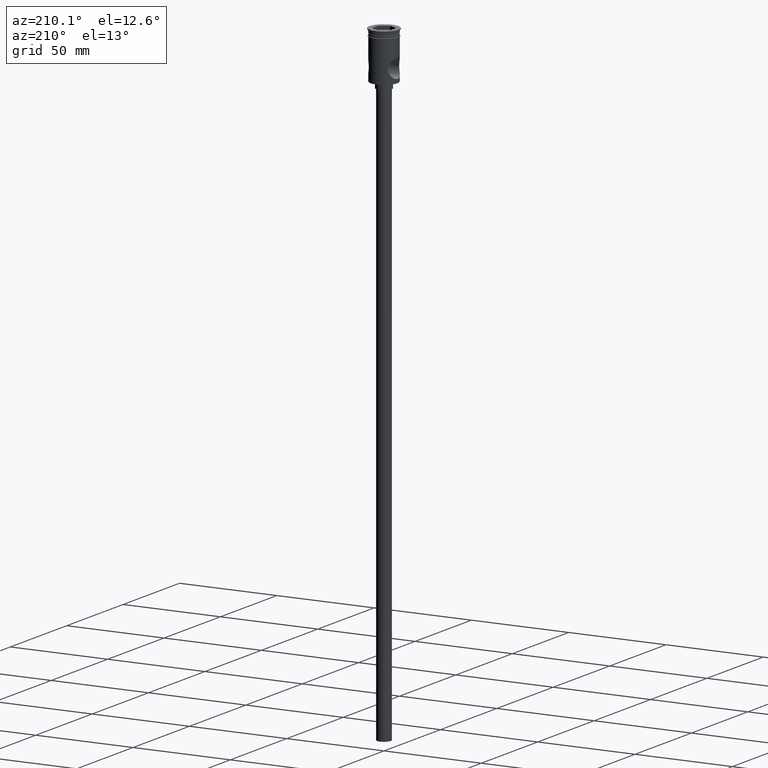
[diagram: clean part render]
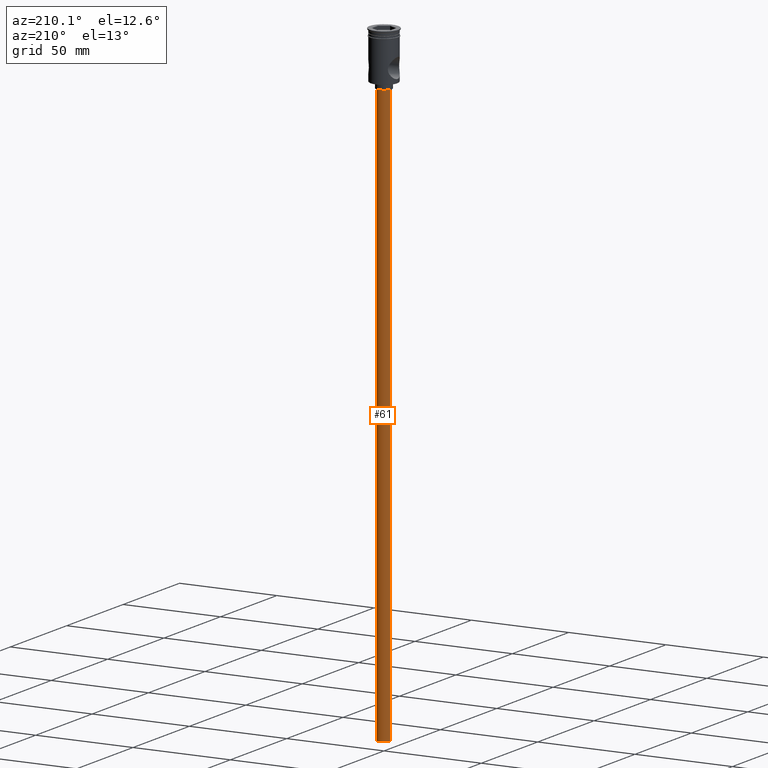
[diagram: same view with one face highlighted and labeled with its STEP entity id]
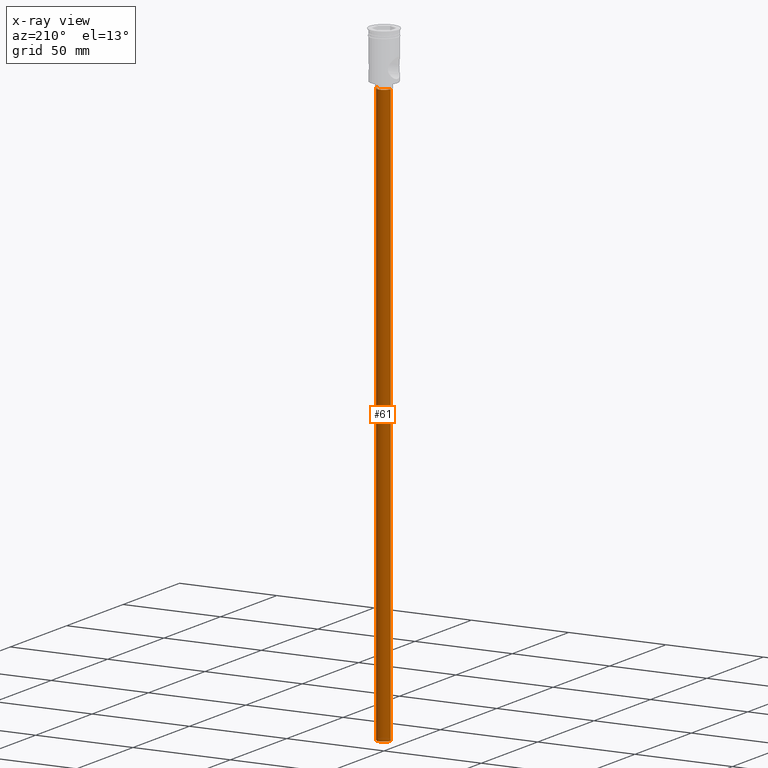
[diagram: x-ray of the same camera — body ghosted, the highlighted face saturated]
A machine part, auxiliary view. The second image highlights one B-rep face of the part: STEP entity #61.
The next image is the same camera in x-ray: the body ghosted, the highlighted face saturated — about 0% of this face is hidden behind the body in this view.
In plain terms, the highlighted cylindrical surface (edge-blend (fillet) strip) has radius 3.5 mm, axis along (-0, -0, 1).
Its self-contained STEP definition (entity closure, byte-faithful):
#43 = LINE ( 'NONE', #501, #405 ) ;
#61 = ADVANCED_FACE ( 'NONE', ( #408 ), #1185, .T. ) ;
#92 = CARTESIAN_POINT ( 'NONE',  ( 0.000000000000000000, 0.000000000000000000, -27.50000000000000000 ) ) ;
#96 = LINE ( 'NONE', #217, #1345 ) ;
#124 = EDGE_CURVE ( 'NONE', #236, #1414, #96, .T. ) ;
#168 = ORIENTED_EDGE ( 'NONE', *, *, #499, .T. ) ;
#199 = CARTESIAN_POINT ( 'NONE',  ( 3.500000000000000444, 0.000000000000000000, -27.50000000000000000 ) ) ;
#217 = CARTESIAN_POINT ( 'NONE',  ( 3.500000000000000444, 0.000000000000000000, -324.5000000000000000 ) ) ;
#221 = DIRECTION ( 'NONE',  ( -1.000000000000000000, 0.000000000000000000, 0.000000000000000000 ) ) ;
#236 = VERTEX_POINT ( 'NONE', #764 ) ;
#263 = AXIS2_PLACEMENT_3D ( 'NONE', #92, #1100, #986 ) ;
#379 = CIRCLE ( 'NONE', #692, 3.500000000000000444 ) ;
#405 = VECTOR ( 'NONE', #967, 1000.000000000000000 ) ;
#408 = FACE_OUTER_BOUND ( 'NONE', #817, .T. ) ;
#441 = DIRECTION ( 'NONE',  ( -0.000000000000000000, -0.000000000000000000, 1.000000000000000000 ) ) ;
#465 = ORIENTED_EDGE ( 'NONE', *, *, #921, .T. ) ;
#499 = EDGE_CURVE ( 'NONE', #648, #900, #43, .T. ) ;
#501 = CARTESIAN_POINT ( 'NONE',  ( -3.500000000000000444, 4.286263797015737088E-16, -324.5000000000000000 ) ) ;
#525 = ORIENTED_EDGE ( 'NONE', *, *, #124, .F. ) ;
#630 = CARTESIAN_POINT ( 'NONE',  ( 0.000000000000000000, 0.000000000000000000, -324.5000000000000000 ) ) ;
#648 = VERTEX_POINT ( 'NONE', #1284 ) ;
#653 = ORIENTED_EDGE ( 'NONE', *, *, #694, .F. ) ;
#692 = AXIS2_PLACEMENT_3D ( 'NONE', #1149, #797, #221 ) ;
#694 = EDGE_CURVE ( 'NONE', #648, #236, #379, .T. ) ;
#741 = DIRECTION ( 'NONE',  ( 1.000000000000000000, 0.000000000000000000, 0.000000000000000000 ) ) ;
#743 = AXIS2_PLACEMENT_3D ( 'NONE', #630, #1072, #741 ) ;
#764 = CARTESIAN_POINT ( 'NONE',  ( 3.500000000000000444, 0.000000000000000000, -324.5000000000000000 ) ) ;
#769 = CIRCLE ( 'NONE', #263, 3.500000000000000444 ) ;
#797 = DIRECTION ( 'NONE',  ( 0.000000000000000000, 0.000000000000000000, -1.000000000000000000 ) ) ;
#817 = EDGE_LOOP ( 'NONE', ( #653, #168, #465, #525 ) ) ;
#900 = VERTEX_POINT ( 'NONE', #1474 ) ;
#921 = EDGE_CURVE ( 'NONE', #900, #1414, #769, .T. ) ;
#967 = DIRECTION ( 'NONE',  ( -0.000000000000000000, -0.000000000000000000, 1.000000000000000000 ) ) ;
#986 = DIRECTION ( 'NONE',  ( -1.000000000000000000, 0.000000000000000000, 0.000000000000000000 ) ) ;
#1072 = DIRECTION ( 'NONE',  ( -0.000000000000000000, -0.000000000000000000, 1.000000000000000000 ) ) ;
#1100 = DIRECTION ( 'NONE',  ( 0.000000000000000000, 0.000000000000000000, -1.000000000000000000 ) ) ;
#1149 = CARTESIAN_POINT ( 'NONE',  ( 0.000000000000000000, 0.000000000000000000, -324.5000000000000000 ) ) ;
#1185 = CYLINDRICAL_SURFACE ( 'NONE', #743, 3.500000000000000444 ) ;
#1284 = CARTESIAN_POINT ( 'NONE',  ( -3.500000000000000444, 4.286263797015737088E-16, -324.5000000000000000 ) ) ;
#1345 = VECTOR ( 'NONE', #441, 1000.000000000000000 ) ;
#1414 = VERTEX_POINT ( 'NONE', #199 ) ;
#1474 = CARTESIAN_POINT ( 'NONE',  ( -3.500000000000000444, 4.286263797015737088E-16, -27.50000000000000000 ) ) ;